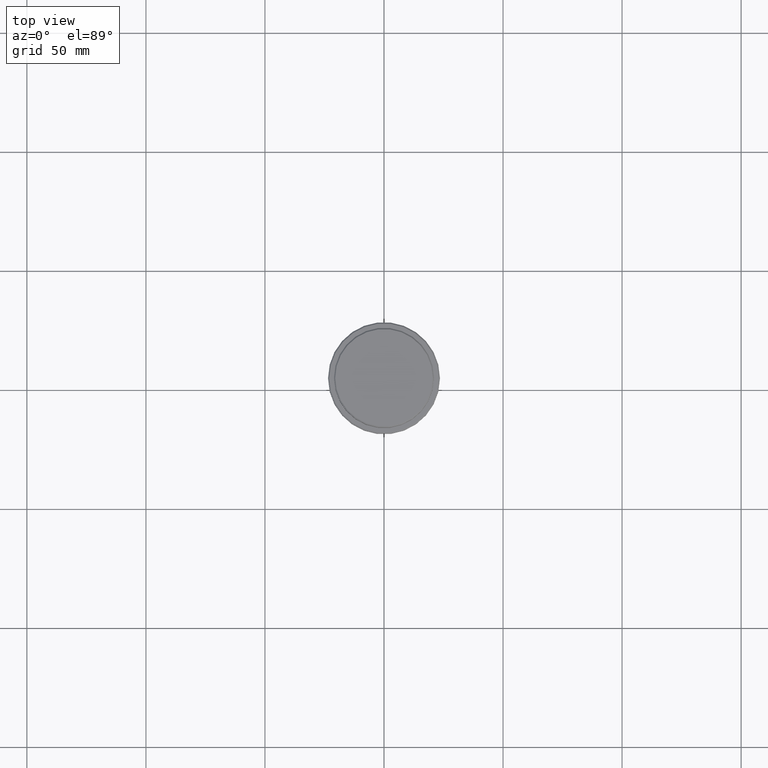
[diagram: clean part render]
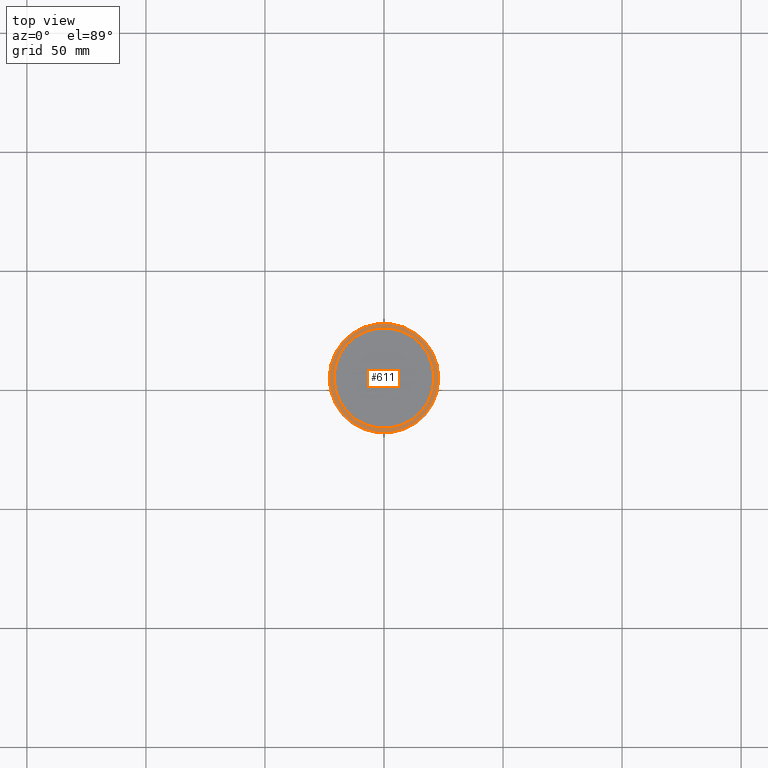
[diagram: same view with one face highlighted and labeled with its STEP entity id]
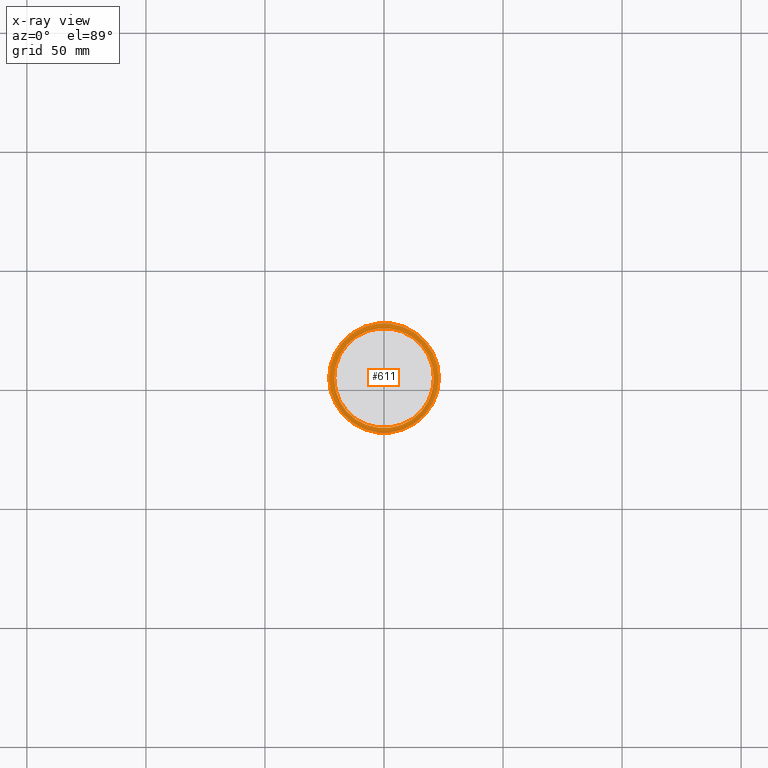
[diagram: x-ray of the same camera — body ghosted, the highlighted face saturated]
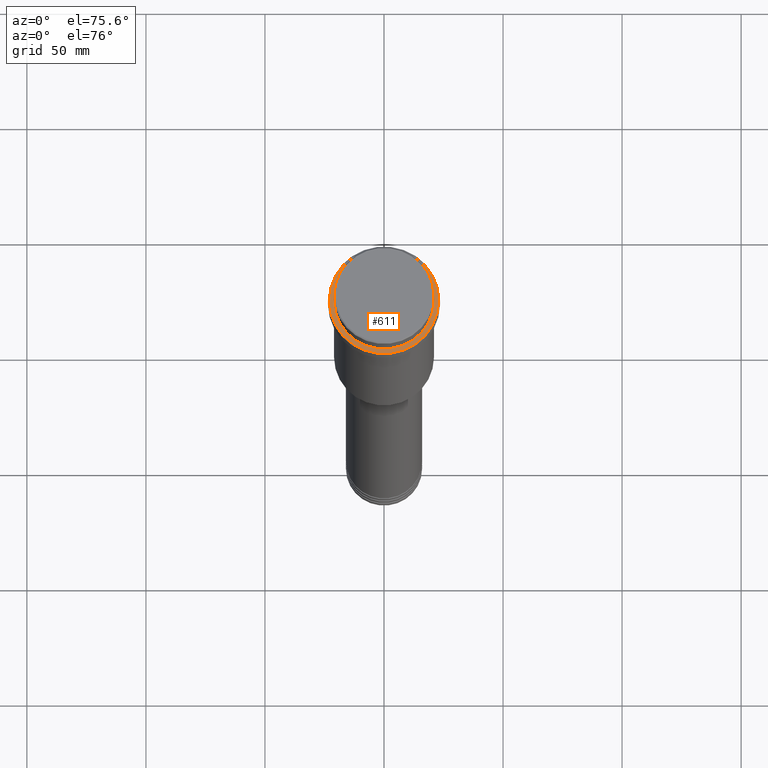
[diagram: same view with one face highlighted and labeled with its STEP entity id]
A machine part, top view. The second image highlights one B-rep face of the part: STEP entity #611.
The next image is the same camera in x-ray: the body ghosted, the highlighted face saturated — about 0% of this face is hidden behind the body in this view.
A second angle (auxiliary view) of the same face is appended — the face is thin or edge-on in the first view.
In plain terms, the highlighted planar face has unit normal (0, -0, 1).
Its self-contained STEP definition (entity closure, byte-faithful):
#57 = CARTESIAN_POINT ( 'NONE',  ( 0.000000000000000000, 20.49999999999999645, -9.000000000000001776 ) ) ;
#98 = DIRECTION ( 'NONE',  ( 1.000000000000000000, 0.000000000000000000, 0.000000000000000000 ) ) ;
#100 = CIRCLE ( 'NONE', #508, 23.00000000000005329 ) ;
#167 = DIRECTION ( 'NONE',  ( 1.000000000000000000, 0.000000000000000000, 0.000000000000000000 ) ) ;
#278 = PLANE ( 'NONE',  #1405 ) ;
#286 = EDGE_CURVE ( 'NONE', #315, #999, #100, .T. ) ;
#315 = VERTEX_POINT ( 'NONE', #610 ) ;
#345 = AXIS2_PLACEMENT_3D ( 'NONE', #908, #1270, #482 ) ;
#369 = CIRCLE ( 'NONE', #466, 23.00000000000005329 ) ;
#376 = ORIENTED_EDGE ( 'NONE', *, *, #982, .T. ) ;
#378 = DIRECTION ( 'NONE',  ( 0.000000000000000000, -0.000000000000000000, 1.000000000000000000 ) ) ;
#414 = DIRECTION ( 'NONE',  ( -0.000000000000000000, -0.000000000000000000, 1.000000000000000000 ) ) ;
#428 = CARTESIAN_POINT ( 'NONE',  ( 0.000000000000000000, 0.000000000000000000, -9.000000000000001776 ) ) ;
#466 = AXIS2_PLACEMENT_3D ( 'NONE', #428, #414, #98 ) ;
#478 = VERTEX_POINT ( 'NONE', #1369 ) ;
#482 = DIRECTION ( 'NONE',  ( 1.000000000000000000, 0.000000000000000000, 0.000000000000000000 ) ) ;
#484 = EDGE_CURVE ( 'NONE', #1300, #478, #668, .T. ) ;
#508 = AXIS2_PLACEMENT_3D ( 'NONE', #652, #1081, #1234 ) ;
#610 = CARTESIAN_POINT ( 'NONE',  ( 23.00000000000005329, 2.847303808017599689E-15, -9.000000000000001776 ) ) ;
#611 = ADVANCED_FACE ( 'NONE', ( #621, #1388 ), #278, .T. ) ;
#621 = FACE_OUTER_BOUND ( 'NONE', #735, .T. ) ;
#630 = ORIENTED_EDGE ( 'NONE', *, *, #690, .T. ) ;
#652 = CARTESIAN_POINT ( 'NONE',  ( 0.000000000000000000, 0.000000000000000000, -9.000000000000001776 ) ) ;
#668 = CIRCLE ( 'NONE', #345, 20.99999999999999289 ) ;
#690 = EDGE_CURVE ( 'NONE', #999, #315, #369, .T. ) ;
#735 = EDGE_LOOP ( 'NONE', ( #630, #1108 ) ) ;
#806 = DIRECTION ( 'NONE',  ( 1.000000000000000000, 0.000000000000000000, 0.000000000000000000 ) ) ;
#810 = DIRECTION ( 'NONE',  ( 0.000000000000000000, 0.000000000000000000, -1.000000000000000000 ) ) ;
#908 = CARTESIAN_POINT ( 'NONE',  ( 0.000000000000000000, 0.000000000000000000, -9.000000000000001776 ) ) ;
#982 = EDGE_CURVE ( 'NONE', #478, #1300, #1032, .T. ) ;
#999 = VERTEX_POINT ( 'NONE', #1238 ) ;
#1023 = ORIENTED_EDGE ( 'NONE', *, *, #484, .T. ) ;
#1032 = CIRCLE ( 'NONE', #1383, 20.99999999999999289 ) ;
#1081 = DIRECTION ( 'NONE',  ( -0.000000000000000000, -0.000000000000000000, 1.000000000000000000 ) ) ;
#1108 = ORIENTED_EDGE ( 'NONE', *, *, #286, .T. ) ;
#1234 = DIRECTION ( 'NONE',  ( 1.000000000000000000, 0.000000000000000000, 0.000000000000000000 ) ) ;
#1238 = CARTESIAN_POINT ( 'NONE',  ( -23.00000000000005329, 0.000000000000000000, -9.000000000000001776 ) ) ;
#1256 = CARTESIAN_POINT ( 'NONE',  ( 0.000000000000000000, 0.000000000000000000, -9.000000000000001776 ) ) ;
#1270 = DIRECTION ( 'NONE',  ( 0.000000000000000000, 0.000000000000000000, -1.000000000000000000 ) ) ;
#1300 = VERTEX_POINT ( 'NONE', #1310 ) ;
#1303 = EDGE_LOOP ( 'NONE', ( #1023, #376 ) ) ;
#1310 = CARTESIAN_POINT ( 'NONE',  ( 20.99999999999999289, 0.000000000000000000, -9.000000000000001776 ) ) ;
#1369 = CARTESIAN_POINT ( 'NONE',  ( -20.99999999999999289, 2.571758278209440872E-15, -9.000000000000001776 ) ) ;
#1383 = AXIS2_PLACEMENT_3D ( 'NONE', #1256, #810, #167 ) ;
#1388 = FACE_BOUND ( 'NONE', #1303, .T. ) ;
#1405 = AXIS2_PLACEMENT_3D ( 'NONE', #57, #378, #806 ) ;